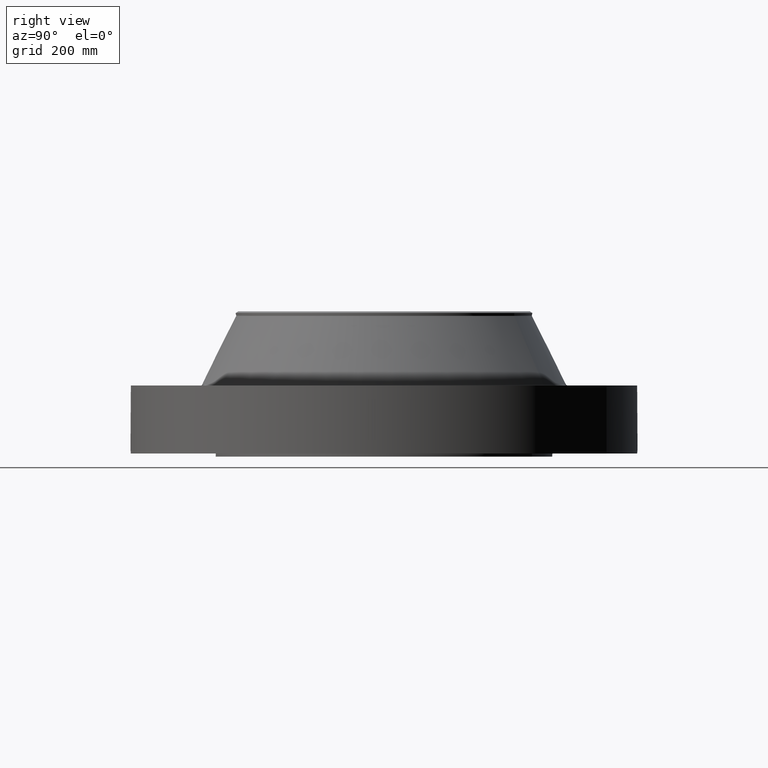
[diagram: clean part render]
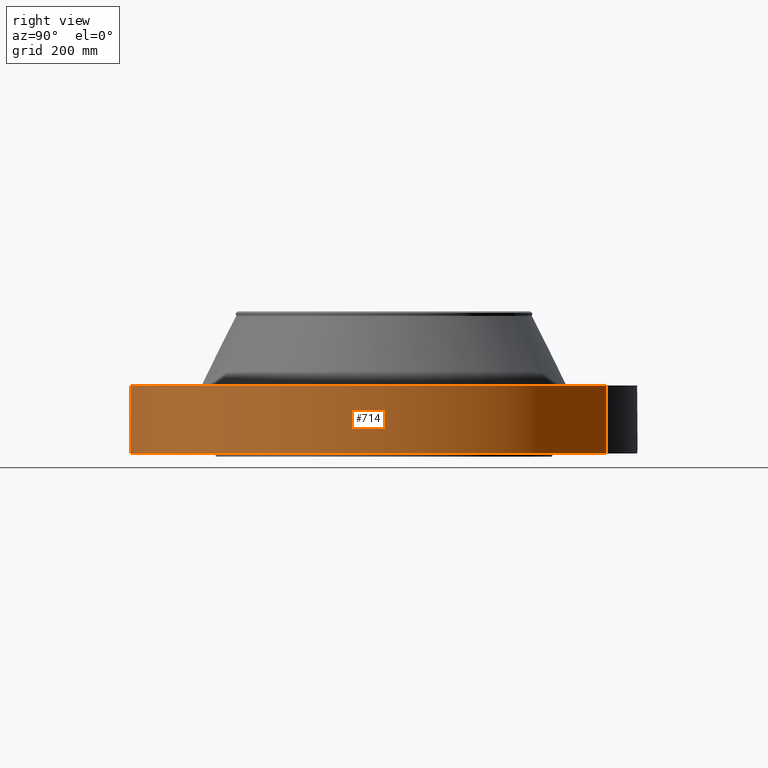
[diagram: same view with one face highlighted and labeled with its STEP entity id]
A machine part, right view. The second image highlights one B-rep face of the part: STEP entity #714.
In plain terms, the highlighted cylindrical surface (partial cylindrical patch) has radius 520.7 mm, axis along (0, 0, -1).
Its self-contained STEP definition (entity closure, byte-faithful):
#38=AXIS2_PLACEMENT_3D('Cylinder Axis2P3D',#35,#36,#37) ;
#169=AXIS2_PLACEMENT_3D('Circle Axis2P3D',#167,#168,$) ;
#618=AXIS2_PLACEMENT_3D('Circle Axis2P3D',#616,#617,$) ;
#35=CARTESIAN_POINT('Axis2P3D Location',(0.,0.,5.87500000002)) ;
#44=CARTESIAN_POINT('Vertex',(-9.82822354143,-17.9904425188,0.250000000001)) ;
#46=CARTESIAN_POINT('Vertex',(9.82822354143,17.9904425188,0.250000000001)) ;
#49=CARTESIAN_POINT('Line Origine',(-9.82822354143,-17.9904425188,3.00000000001)) ;
#53=CARTESIAN_POINT('Vertex',(-9.82822354143,-17.9904425188,5.75000000002)) ;
#60=CARTESIAN_POINT('Vertex',(9.82822354143,17.9904425188,5.75000000002)) ;
#63=CARTESIAN_POINT('Line Origine',(9.82822354143,17.9904425188,3.00000000001)) ;
#167=CARTESIAN_POINT('Axis2P3D Location',(0.,0.,0.250000000001)) ;
#616=CARTESIAN_POINT('Axis2P3D Location',(0.,0.,5.75000000002)) ;
#628=CARTESIAN_POINT('Control Point',(0.000715824917714,-20.4999999876,1.29411846189)) ;
#629=CARTESIAN_POINT('Control Point',(0.018679898828,-20.4999993603,1.29408219879)) ;
#630=CARTESIAN_POINT('Control Point',(0.0366408865826,-20.4999749398,1.29267553264)) ;
#631=CARTESIAN_POINT('Control Point',(0.0543914150088,-20.4999278432,1.28991485039)) ;
#632=CARTESIAN_POINT('Vertex',(0.000715562181721,-20.4999999876,1.29411851096)) ;
#634=CARTESIAN_POINT('Vertex',(0.0543830135546,-20.4999281149,1.2899161742)) ;
#638=CARTESIAN_POINT('Control Point',(0.0543829213644,-20.4999278658,1.28991563747)) ;
#639=CARTESIAN_POINT('Control Point',(0.095161626648,-20.4998196866,1.28563231921)) ;
#640=CARTESIAN_POINT('Control Point',(0.135341048834,-20.4995867329,1.27394936521)) ;
#641=CARTESIAN_POINT('Control Point',(0.172399363986,-20.4992750716,1.2556052783)) ;
#642=CARTESIAN_POINT('Vertex',(0.172399363986,-20.4992750716,1.2556052783)) ;
#646=CARTESIAN_POINT('Control Point',(0.0312902795807,-20.49997612,0.531210006069)) ;
#647=CARTESIAN_POINT('Control Point',(0.0966447375259,-20.4998763658,0.539468586537)) ;
#648=CARTESIAN_POINT('Control Point',(0.159961112292,-20.4995192822,0.561264966904)) ;
#649=CARTESIAN_POINT('Control Point',(0.217369021501,-20.4989412571,0.595973103796)) ;
#650=CARTESIAN_POINT('Control Point',(0.293249417006,-20.4979534264,0.666840520911)) ;
#651=CARTESIAN_POINT('Control Point',(0.342132237242,-20.4971543823,0.755737034244)) ;
#652=CARTESIAN_POINT('Control Point',(0.356013076466,-20.4969122592,0.789915832823)) ;
#653=CARTESIAN_POINT('Control Point',(0.376680669457,-20.4965418285,0.864782818818)) ;
#654=CARTESIAN_POINT('Control Point',(0.378563151699,-20.4965032415,0.942006461801)) ;
#655=CARTESIAN_POINT('Control Point',(0.374228597143,-20.4965852529,0.982522507107)) ;
#656=CARTESIAN_POINT('Control Point',(0.351649343028,-20.4970011659,1.0755763132)) ;
#657=CARTESIAN_POINT('Control Point',(0.301689779204,-20.4978137591,1.15731709978)) ;
#658=CARTESIAN_POINT('Control Point',(0.264535921596,-20.4983582547,1.19854416924)) ;
#659=CARTESIAN_POINT('Control Point',(0.220645333485,-20.4988693219,1.23172323835)) ;
#660=CARTESIAN_POINT('Control Point',(0.172399363986,-20.4992750716,1.2556052783)) ;
#661=CARTESIAN_POINT('Vertex',(0.0312902795807,-20.49997612,0.531210006069)) ;
#665=CARTESIAN_POINT('Control Point',(0.0312902795807,-20.49997612,0.531210006069)) ;
#666=CARTESIAN_POINT('Control Point',(0.0208557163598,-20.4999920469,0.53087758659)) ;
#667=CARTESIAN_POINT('Control Point',(0.0104125810733,-20.5000000015,0.530932657293)) ;
#668=CARTESIAN_POINT('Control Point',(-2.72878356883E-006,-20.5000000001,0.531374667806)) ;
#669=CARTESIAN_POINT('Vertex',(-2.72878354576E-006,-20.5000000001,0.531374667806)) ;
#673=CARTESIAN_POINT('Control Point',(-0.192400539603,-20.4990971029,0.587824630105)) ;
#674=CARTESIAN_POINT('Control Point',(-0.148919006981,-20.4995052121,0.562282976667)) ;
#675=CARTESIAN_POINT('Control Point',(-0.101101430043,-20.4998316412,0.543864645033)) ;
#676=CARTESIAN_POINT('Control Point',(-0.050800398118,-20.4999999933,0.533530448657)) ;
#677=CARTESIAN_POINT('Control Point',(-2.72878355063E-006,-20.5000000001,0.531374667806)) ;
#678=CARTESIAN_POINT('Vertex',(-0.192400539603,-20.4990971029,0.587824630105)) ;
#682=CARTESIAN_POINT('Control Point',(-0.192400539603,-20.4990971029,0.587824630105)) ;
#683=CARTESIAN_POINT('Control Point',(-0.249071407735,-20.4985652012,0.621113879375)) ;
#684=CARTESIAN_POINT('Control Point',(-0.29885612467,-20.4979020771,0.66574673319)) ;
#685=CARTESIAN_POINT('Control Point',(-0.338594358609,-20.4972324708,0.720056342266)) ;
#686=CARTESIAN_POINT('Control Point',(-0.382272589354,-20.4964425308,0.818451178202)) ;
#687=CARTESIAN_POINT('Control Point',(-0.390437966429,-20.4962805539,0.923716801843)) ;
#688=CARTESIAN_POINT('Control Point',(-0.388179202956,-20.4963247584,0.963970356237)) ;
#689=CARTESIAN_POINT('Control Point',(-0.37378231351,-20.4966014868,1.03891712648)) ;
#690=CARTESIAN_POINT('Control Point',(-0.3414529804,-20.4971656869,1.1073659543)) ;
#691=CARTESIAN_POINT('Control Point',(-0.322315267196,-20.49748267,1.13775235206)) ;
#692=CARTESIAN_POINT('Control Point',(-0.260878639259,-20.4984122402,1.21343882718)) ;
#693=CARTESIAN_POINT('Control Point',(-0.178311193896,-20.4993329751,1.26595615751)) ;
#694=CARTESIAN_POINT('Control Point',(-0.12017622523,-20.4997832671,1.28775569496)) ;
#695=CARTESIAN_POINT('Control Point',(-0.0596139562701,-20.5000000753,1.29707708315)) ;
#696=CARTESIAN_POINT('Control Point',(2.58579355307E-005,-20.5000000001,1.29415298429)) ;
#697=CARTESIAN_POINT('Vertex',(2.58579355488E-005,-20.5000000001,1.29415298429)) ;
#701=CARTESIAN_POINT('Control Point',(0.000715562172311,-20.4999999876,1.29411851094)) ;
#702=CARTESIAN_POINT('Control Point',(0.000370734753917,-20.4999999996,1.29413607521)) ;
#703=CARTESIAN_POINT('Control Point',(2.58579403195E-005,-20.5000000001,1.29415298429)) ;
#36=DIRECTION('Axis2P3D Direction',(0.,0.,-0.0393700787402)) ;
#37=DIRECTION('Axis2P3D XDirection',(0.0188750212049,0.0345504945626,0.)) ;
#50=DIRECTION('Vector Direction',(0.,0.,-0.0393700787402)) ;
#64=DIRECTION('Vector Direction',(0.,0.,-0.0393700787402)) ;
#168=DIRECTION('Axis2P3D Direction',(0.,0.,-0.0393700787402)) ;
#617=DIRECTION('Axis2P3D Direction',(0.,0.,-0.0393700787402)) ;
#51=VECTOR('Line Direction',#50,0.0393700787402) ;
#65=VECTOR('Line Direction',#64,0.0393700787402) ;
#622=ORIENTED_EDGE('',*,*,#171,.F.) ;
#623=ORIENTED_EDGE('',*,*,#67,.T.) ;
#624=ORIENTED_EDGE('',*,*,#620,.T.) ;
#625=ORIENTED_EDGE('',*,*,#55,.F.) ;
#706=ORIENTED_EDGE('',*,*,#636,.T.) ;
#707=ORIENTED_EDGE('',*,*,#644,.T.) ;
#708=ORIENTED_EDGE('',*,*,#663,.F.) ;
#709=ORIENTED_EDGE('',*,*,#671,.T.) ;
#710=ORIENTED_EDGE('',*,*,#680,.F.) ;
#711=ORIENTED_EDGE('',*,*,#699,.T.) ;
#712=ORIENTED_EDGE('',*,*,#704,.F.) ;
#713=FACE_BOUND('',#705,.T.) ;
#714=ADVANCED_FACE('PartBody',(#626,#713),#39,.T.) ;
#627=B_SPLINE_CURVE_WITH_KNOTS('',3,(#628,#629,#630,#631),.UNSPECIFIED.,.F.,.U.,(4,4),(34.6169402371,36.609883033),.UNSPECIFIED.) ;
#637=B_SPLINE_CURVE_WITH_KNOTS('',3,(#638,#639,#640,#641),.UNSPECIFIED.,.F.,.U.,(4,4),(0.,4.60729360195),.UNSPECIFIED.) ;
#645=B_SPLINE_CURVE_WITH_KNOTS('',5,(#646,#647,#648,#649,#650,#651,#652,#653,#654,#655,#656,#657,#658,#659,#660),.UNSPECIFIED.,.F.,.U.,(6,3,3,3,6),(0.,11.448054477,18.0008782196,25.3255866472,35.3225936684),.UNSPECIFIED.) ;
#664=B_SPLINE_CURVE_WITH_KNOTS('',3,(#665,#666,#667,#668),.UNSPECIFIED.,.F.,.U.,(4,4),(0.,1.08852170115),.UNSPECIFIED.) ;
#672=B_SPLINE_CURVE_WITH_KNOTS('',4,(#673,#674,#675,#676,#677),.UNSPECIFIED.,.F.,.U.,(5,5),(0.,7.07860081032),.UNSPECIFIED.) ;
#681=B_SPLINE_CURVE_WITH_KNOTS('',5,(#682,#683,#684,#685,#686,#687,#688,#689,#690,#691,#692,#693,#694,#695,#696),.UNSPECIFIED.,.F.,.U.,(6,3,3,3,6),(0.,11.5322075213,18.6469119586,25.0825582784,36.2304778255),.UNSPECIFIED.) ;
#700=B_SPLINE_CURVE_WITH_KNOTS('',2,(#701,#702,#703),.UNSPECIFIED.,.F.,.U.,(3,3),(1.0138716213,1.03965747719),.UNSPECIFIED.) ;
#170=CIRCLE('generated circle',#169,20.5000000001) ;
#619=CIRCLE('generated circle',#618,20.5000000001) ;
#39=CYLINDRICAL_SURFACE('generated cylinder',#38,20.5000000001) ;
#55=EDGE_CURVE('',#45,#54,#52,.F.) ;
#67=EDGE_CURVE('',#47,#61,#66,.F.) ;
#171=EDGE_CURVE('',#47,#45,#170,.T.) ;
#620=EDGE_CURVE('',#61,#54,#619,.T.) ;
#636=EDGE_CURVE('',#633,#635,#627,.T.) ;
#644=EDGE_CURVE('',#635,#643,#637,.T.) ;
#663=EDGE_CURVE('',#662,#643,#645,.T.) ;
#671=EDGE_CURVE('',#662,#670,#664,.T.) ;
#680=EDGE_CURVE('',#679,#670,#672,.T.) ;
#699=EDGE_CURVE('',#679,#698,#681,.T.) ;
#704=EDGE_CURVE('',#633,#698,#700,.T.) ;
#621=EDGE_LOOP('',(#622,#623,#624,#625)) ;
#705=EDGE_LOOP('',(#706,#707,#708,#709,#710,#711,#712)) ;
#626=FACE_OUTER_BOUND('',#621,.T.) ;
#52=LINE('Line',#49,#51) ;
#66=LINE('Line',#63,#65) ;
#45=VERTEX_POINT('',#44) ;
#47=VERTEX_POINT('',#46) ;
#54=VERTEX_POINT('',#53) ;
#61=VERTEX_POINT('',#60) ;
#633=VERTEX_POINT('',#632) ;
#635=VERTEX_POINT('',#634) ;
#643=VERTEX_POINT('',#642) ;
#662=VERTEX_POINT('',#661) ;
#670=VERTEX_POINT('',#669) ;
#679=VERTEX_POINT('',#678) ;
#698=VERTEX_POINT('',#697) ;